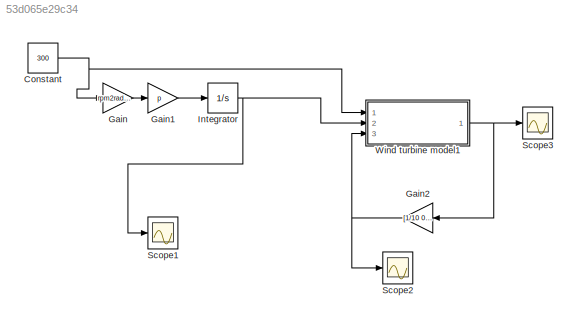
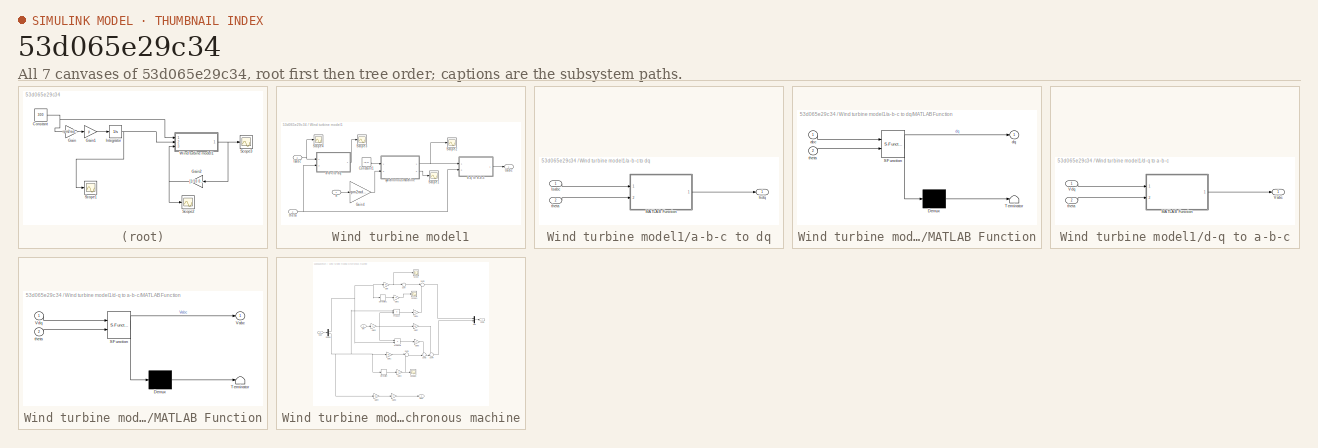
[diagram: thumbnail index - all 7 canvases of the model, root first then tree order]
MODEL slx_53d065e29c34
KIND model
CONFIG AbsTol = auto
CONFIG FixedStep = Ts
CONFIG MaxStep = auto
CONFIG MinStep = auto
CONFIG RelTol = 1e-3
CONFIG SampleTimeConstraint = Unconstrained
CONFIG Solver = ode3
CONFIG SolverMode = Auto
CONFIG SolverName = ode3
CONFIG StartTime = 0.0
CONFIG StopTime = 3
BLOCK [Constant] Constant
  Value = 300
BLOCK [Gain] Gain
  Gain = rpm2radps
  OutDataTypeStr = Inherit: Inherit via internal rule
  ParamDataTypeStr = Inherit: Inherit via internal rule
  SaturateOnIntegerOverflow = off
BLOCK [Gain] Gain1
  Gain = p
  OutDataTypeStr = Inherit: Inherit via internal rule
  ParamDataTypeStr = Inherit: Inherit via internal rule
  SaturateOnIntegerOverflow = off
BLOCK [Gain] Gain2
  Gain = [1/10 0 0 ; 0 1/10 0 ; 0 0 1/10]
  Multiplication = Matrix(K*u)
  OutDataTypeStr = Inherit: Inherit via internal rule
  ParamDataTypeStr = Inherit: Inherit via internal rule
  SaturateOnIntegerOverflow = off
BLOCK [Integrator] Integrator
  Ports = [1, 1]
BLOCK [Scope] Scope1
  Floating = off
  LimitDataPoints = off
  NumInputPorts = 1
  Ports = [1]
  SaveName = ScopeData3
  YMax = 400
  YMin = -400
  ZoomMode = xonly
BLOCK [Scope] Scope2
  Floating = off
  LimitDataPoints = off
  NumInputPorts = 1
  Ports = [1]
  SaveName = ScopeData5
  YMax = 1.75
  YMin = -1.75
  ZoomMode = xonly
BLOCK [Scope] Scope3
  Floating = off
  LimitDataPoints = off
  NumInputPorts = 1
  Ports = [1]
  YMax = 17.5
  YMin = -17.5
  ZoomMode = xonly
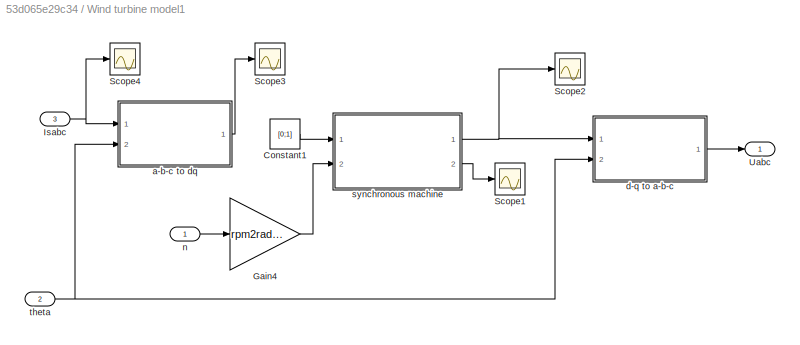
BLOCK [SubSystem] Wind turbine model1
  Ports = [3, 1]
  RequestExecContextInheritance = off
BLOCK [Constant] Wind turbine model1/Constant1
  Value = [0;1]
BLOCK [Gain] Wind turbine model1/Gain4
  Gain = rpm2radps
  OutDataTypeStr = Inherit: Inherit via internal rule
  ParamDataTypeStr = Inherit: Inherit via internal rule
  SaturateOnIntegerOverflow = off
BLOCK [Inport] Wind turbine model1/Isabc
  IconDisplay = Port number
  Port = 3
BLOCK [Scope] Wind turbine model1/Scope1
  Floating = off
  NumInputPorts = 1
  Ports = [1]
  SaveName = ScopeData1
BLOCK [Scope] Wind turbine model1/Scope2
  Floating = off
  NumInputPorts = 1
  Ports = [1]
  SaveName = ScopeData4
  YMax = 20
  YMin = -1
BLOCK [Scope] Wind turbine model1/Scope3
  Floating = off
  NumInputPorts = 1
  Ports = [1]
  SaveName = ScopeData2
  YMax = 2.2
  YMin = -0.1
BLOCK [Scope] Wind turbine model1/Scope4
  Floating = off
  LimitDataPoints = off
  NumInputPorts = 1
  Ports = [1]
  SaveName = ScopeData6
  YMax = 1.3
  YMin = -0.7
  ZoomMode = xonly
BLOCK [Outport] Wind turbine model1/Uabc
  IconDisplay = Port number
BLOCK [SubSystem] Wind turbine model1/a-b-c to dq
  Ports = [2, 1]
  RequestExecContextInheritance = off
BLOCK [Inport] Wind turbine model1/a-b-c to dq/Isabc
  IconDisplay = Port number
BLOCK [Outport] Wind turbine model1/a-b-c to dq/Isdq
  IconDisplay = Port number
BLOCK [SubSystem] Wind turbine model1/a-b-c to dq/MATLAB Function
  ErrorFcn = Stateflow.Translate.translate
  PermitHierarchicalResolution = ExplicitOnly
  Ports = [2, 1]
  RequestExecContextInheritance = off
  SFBlockType = MATLAB Function
  TreatAsAtomicUnit = on
BLOCK [Demux] Wind turbine model1/a-b-c to dq/MATLAB Function/ Demux 
  Outputs = 1
  Ports = [1, 1]
BLOCK [S-Function] Wind turbine model1/a-b-c to dq/MATLAB Function/ SFunction 
  EnableBusSupport = on
  FunctionName = sf_sfun
  PortCounts = [2 2]
  Ports = [2, 2]
  Tag = Stateflow S-Function WT_modelv2 3
BLOCK [Terminator] Wind turbine model1/a-b-c to dq/MATLAB Function/ Terminator 
BLOCK [Inport] Wind turbine model1/a-b-c to dq/MATLAB Function/abc
  IconDisplay = Port number
BLOCK [Outport] Wind turbine model1/a-b-c to dq/MATLAB Function/dq
  IconDisplay = Port number
BLOCK [Inport] Wind turbine model1/a-b-c to dq/MATLAB Function/theta
  IconDisplay = Port number
  Port = 2
BLOCK [Inport] Wind turbine model1/a-b-c to dq/theta
  IconDisplay = Port number
  Port = 2
BLOCK [SubSystem] Wind turbine model1/d-q to a-b-c
  Ports = [2, 1]
  RequestExecContextInheritance = off
BLOCK [SubSystem] Wind turbine model1/d-q to a-b-c/MATLAB Function
  ErrorFcn = Stateflow.Translate.translate
  PermitHierarchicalResolution = ExplicitOnly
  Ports = [2, 1]
  RequestExecContextInheritance = off
  SFBlockType = MATLAB Function
  TreatAsAtomicUnit = on
BLOCK [Demux] Wind turbine model1/d-q to a-b-c/MATLAB Function/ Demux 
  Outputs = 1
  Ports = [1, 1]
BLOCK [S-Function] Wind turbine model1/d-q to a-b-c/MATLAB Function/ SFunction 
  EnableBusSupport = on
  FunctionName = sf_sfun
  PortCounts = [2 2]
  Ports = [2, 2]
  Tag = Stateflow S-Function WT_modelv2 4
BLOCK [Terminator] Wind turbine model1/d-q to a-b-c/MATLAB Function/ Terminator 
BLOCK [Outport] Wind turbine model1/d-q to a-b-c/MATLAB Function/Vabc
  IconDisplay = Port number
BLOCK [Inport] Wind turbine model1/d-q to a-b-c/MATLAB Function/Vdq
  IconDisplay = Port number
BLOCK [Inport] Wind turbine model1/d-q to a-b-c/MATLAB Function/theta
  IconDisplay = Port number
  Port = 2
BLOCK [Outport] Wind turbine model1/d-q to a-b-c/Vabc
  IconDisplay = Port number
BLOCK [Inport] Wind turbine model1/d-q to a-b-c/Vdq
  IconDisplay = Port number
BLOCK [Inport] Wind turbine model1/d-q to a-b-c/theta
  IconDisplay = Port number
  Port = 2
BLOCK [Inport] Wind turbine model1/n
  IconDisplay = Port number
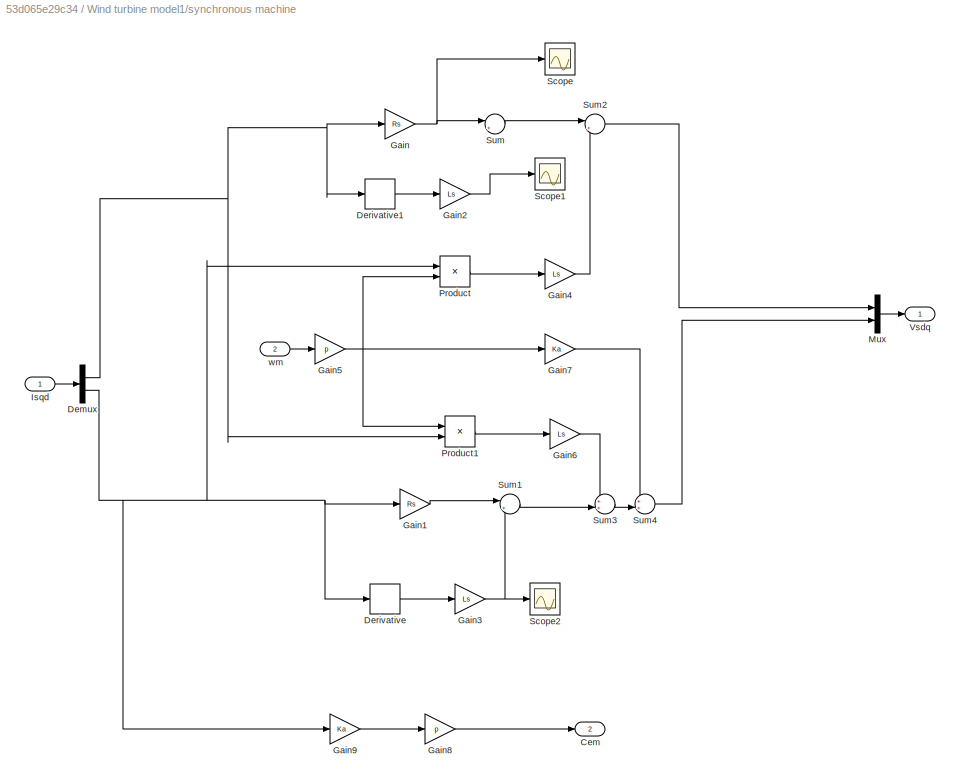
BLOCK [SubSystem] Wind turbine model1/synchronous machine
  Ports = [2, 2]
  RequestExecContextInheritance = off
BLOCK [Outport] Wind turbine model1/synchronous machine/Cem
  IconDisplay = Port number
  Port = 2
BLOCK [Demux] Wind turbine model1/synchronous machine/Demux
  DisplayOption = bar
  Outputs = 2
  Ports = [1, 2]
BLOCK [Derivative] Wind turbine model1/synchronous machine/Derivative
BLOCK [Derivative] Wind turbine model1/synchronous machine/Derivative1
BLOCK [Gain] Wind turbine model1/synchronous machine/Gain
  Gain = Rs
  OutDataTypeStr = Inherit: Inherit via internal rule
  ParamDataTypeStr = Inherit: Inherit via internal rule
  SaturateOnIntegerOverflow = off
BLOCK [Gain] Wind turbine model1/synchronous machine/Gain1
  Gain = Rs
  OutDataTypeStr = Inherit: Inherit via internal rule
  ParamDataTypeStr = Inherit: Inherit via internal rule
  SaturateOnIntegerOverflow = off
BLOCK [Gain] Wind turbine model1/synchronous machine/Gain2
  Gain = Ls
  OutDataTypeStr = Inherit: Inherit via internal rule
  ParamDataTypeStr = Inherit: Inherit via internal rule
  SaturateOnIntegerOverflow = off
BLOCK [Gain] Wind turbine model1/synchronous machine/Gain3
  Gain = Ls
  OutDataTypeStr = Inherit: Inherit via internal rule
  ParamDataTypeStr = Inherit: Inherit via internal rule
  SaturateOnIntegerOverflow = off
BLOCK [Gain] Wind turbine model1/synchronous machine/Gain4
  Gain = Ls
  OutDataTypeStr = Inherit: Inherit via internal rule
  ParamDataTypeStr = Inherit: Inherit via internal rule
  SaturateOnIntegerOverflow = off
BLOCK [Gain] Wind turbine model1/synchronous machine/Gain5
  Gain = p
  OutDataTypeStr = Inherit: Inherit via internal rule
  ParamDataTypeStr = Inherit: Inherit via internal rule
  SaturateOnIntegerOverflow = off
BLOCK [Gain] Wind turbine model1/synchronous machine/Gain6
  Gain = Ls
  OutDataTypeStr = Inherit: Inherit via internal rule
  ParamDataTypeStr = Inherit: Inherit via internal rule
  SaturateOnIntegerOverflow = off
BLOCK [Gain] Wind turbine model1/synchronous machine/Gain7
  Gain = Ka
  OutDataTypeStr = Inherit: Inherit via internal rule
  ParamDataTypeStr = Inherit: Inherit via internal rule
  SaturateOnIntegerOverflow = off
BLOCK [Gain] Wind turbine model1/synchronous machine/Gain8
  Gain = p
  OutDataTypeStr = Inherit: Inherit via internal rule
  ParamDataTypeStr = Inherit: Inherit via internal rule
  SaturateOnIntegerOverflow = off
BLOCK [Gain] Wind turbine model1/synchronous machine/Gain9
  Gain = Ka
  OutDataTypeStr = Inherit: Inherit via internal rule
  ParamDataTypeStr = Inherit: Inherit via internal rule
  SaturateOnIntegerOverflow = off
BLOCK [Inport] Wind turbine model1/synchronous machine/Isqd
  IconDisplay = Port number
BLOCK [Mux] Wind turbine model1/synchronous machine/Mux
  DisplayOption = bar
  Inputs = 2
  Ports = [2, 1]
BLOCK [Product] Wind turbine model1/synchronous machine/Product
  InputSameDT = off
  OutDataTypeStr = Inherit: Inherit via internal rule
  Ports = [2, 1]
  RndMeth = Floor
  SaturateOnIntegerOverflow = off
BLOCK [Product] Wind turbine model1/synchronous machine/Product1
  InputSameDT = off
  OutDataTypeStr = Inherit: Inherit via internal rule
  Ports = [2, 1]
  RndMeth = Floor
  SaturateOnIntegerOverflow = off
BLOCK [Scope] Wind turbine model1/synchronous machine/Scope
  Floating = off
  LimitDataPoints = off
  NumInputPorts = 1
  Ports = [1]
  SaveName = ScopeData7
BLOCK [Scope] Wind turbine model1/synchronous machine/Scope1
  Floating = off
  LimitDataPoints = off
  NumInputPorts = 1
  Ports = [1]
  SaveName = ScopeData8
BLOCK [Scope] Wind turbine model1/synchronous machine/Scope2
  Floating = off
  LimitDataPoints = off
  NumInputPorts = 1
  Ports = [1]
  SaveName = ScopeData9
BLOCK [Sum] Wind turbine model1/synchronous machine/Sum
  IconShape = round
  InputSameDT = off
  Inputs = |++
  OutDataTypeStr = Inherit: Inherit via internal rule
  Ports = [2, 1]
  SaturateOnIntegerOverflow = off
BLOCK [Sum] Wind turbine model1/synchronous machine/Sum1
  IconShape = round
  InputSameDT = off
  Inputs = |++
  OutDataTypeStr = Inherit: Inherit via internal rule
  Ports = [2, 1]
  SaturateOnIntegerOverflow = off
BLOCK [Sum] Wind turbine model1/synchronous machine/Sum2
  IconShape = round
  InputSameDT = off
  Inputs = |+-
  OutDataTypeStr = Inherit: Inherit via internal rule
  Ports = [2, 1]
  SaturateOnIntegerOverflow = off
BLOCK [Sum] Wind turbine model1/synchronous machine/Sum3
  IconShape = round
  InputSameDT = off
  Inputs = ++|
  OutDataTypeStr = Inherit: Inherit via internal rule
  Ports = [2, 1]
  SaturateOnIntegerOverflow = off
BLOCK [Sum] Wind turbine model1/synchronous machine/Sum4
  IconShape = round
  InputSameDT = off
  Inputs = ++|
  OutDataTypeStr = Inherit: Inherit via internal rule
  Ports = [2, 1]
  SaturateOnIntegerOverflow = off
BLOCK [Outport] Wind turbine model1/synchronous machine/Vsdq
  IconDisplay = Port number
BLOCK [Inport] Wind turbine model1/synchronous machine/wm
  IconDisplay = Port number
  Port = 2
BLOCK [Inport] Wind turbine model1/theta
  IconDisplay = Port number
  Port = 2
NET Constant:1 -> Gain:1, Wind turbine model1:1
LINE Gain1:1 -> Integrator:1
NET Gain2:1 -> Scope2:1, Wind turbine model1:3
LINE Gain:1 -> Gain1:1
NET Integrator:1 -> Scope1:1, Wind turbine model1:2
LINE Wind turbine model1/Constant1:1 -> Wind turbine model1/synchronous machine:1
LINE Wind turbine model1/Gain4:1 -> Wind turbine model1/synchronous machine:2
NET Wind turbine model1/Isabc:1 -> Wind turbine model1/Scope4:1, Wind turbine model1/a-b-c to dq:1
LINE Wind turbine model1/a-b-c to dq/Isabc:1 -> Wind turbine model1/a-b-c to dq/MATLAB Function:1
LINE Wind turbine model1/a-b-c to dq/MATLAB Function:1 -> Wind turbine model1/a-b-c to dq/Isdq:1
LINE Wind turbine model1/a-b-c to dq/theta:1 -> Wind turbine model1/a-b-c to dq/MATLAB Function:2
LINE Wind turbine model1/a-b-c to dq:1 -> Wind turbine model1/Scope3:1
LINE Wind turbine model1/d-q to a-b-c/MATLAB Function:1 -> Wind turbine model1/d-q to a-b-c/Vabc:1
LINE Wind turbine model1/d-q to a-b-c/Vdq:1 -> Wind turbine model1/d-q to a-b-c/MATLAB Function:1
LINE Wind turbine model1/d-q to a-b-c/theta:1 -> Wind turbine model1/d-q to a-b-c/MATLAB Function:2
LINE Wind turbine model1/d-q to a-b-c:1 -> Wind turbine model1/Uabc:1
LINE Wind turbine model1/n:1 -> Wind turbine model1/Gain4:1
NET Wind turbine model1/synchronous machine/Demux:1 -> Wind turbine model1/synchronous machine/Derivative1:1, Wind turbine model1/synchronous machine/Gain:1, Wind turbine model1/synchronous machine/Product1:2
NET Wind turbine model1/synchronous machine/Demux:2 -> Wind turbine model1/synchronous machine/Derivative:1, Wind turbine model1/synchronous machine/Gain1:1, Wind turbine model1/synchronous machine/Gain9:1, Wind turbine model1/synchronous machine/Product:1
LINE Wind turbine model1/synchronous machine/Derivative1:1 -> Wind turbine model1/synchronous machine/Gain2:1
LINE Wind turbine model1/synchronous machine/Derivative:1 -> Wind turbine model1/synchronous machine/Gain3:1
LINE Wind turbine model1/synchronous machine/Gain1:1 -> Wind turbine model1/synchronous machine/Sum1:1
LINE Wind turbine model1/synchronous machine/Gain2:1 -> Wind turbine model1/synchronous machine/Scope1:1
NET Wind turbine model1/synchronous machine/Gain3:1 -> Wind turbine model1/synchronous machine/Scope2:1, Wind turbine model1/synchronous machine/Sum1:2
LINE Wind turbine model1/synchronous machine/Gain4:1 -> Wind turbine model1/synchronous machine/Sum2:2
NET Wind turbine model1/synchronous machine/Gain5:1 -> Wind turbine model1/synchronous machine/Gain7:1, Wind turbine model1/synchronous machine/Product1:1, Wind turbine model1/synchronous machine/Product:2
LINE Wind turbine model1/synchronous machine/Gain6:1 -> Wind turbine model1/synchronous machine/Sum3:1
LINE Wind turbine model1/synchronous machine/Gain7:1 -> Wind turbine model1/synchronous machine/Sum4:1
LINE Wind turbine model1/synchronous machine/Gain8:1 -> Wind turbine model1/synchronous machine/Cem:1
LINE Wind turbine model1/synchronous machine/Gain9:1 -> Wind turbine model1/synchronous machine/Gain8:1
NET Wind turbine model1/synchronous machine/Gain:1 -> Wind turbine model1/synchronous machine/Scope:1, Wind turbine model1/synchronous machine/Sum:1
LINE Wind turbine model1/synchronous machine/Isqd:1 -> Wind turbine model1/synchronous machine/Demux:1
LINE Wind turbine model1/synchronous machine/Mux:1 -> Wind turbine model1/synchronous machine/Vsdq:1
LINE Wind turbine model1/synchronous machine/Product1:1 -> Wind turbine model1/synchronous machine/Gain6:1
LINE Wind turbine model1/synchronous machine/Product:1 -> Wind turbine model1/synchronous machine/Gain4:1
LINE Wind turbine model1/synchronous machine/Sum1:1 -> Wind turbine model1/synchronous machine/Sum3:2
LINE Wind turbine model1/synchronous machine/Sum2:1 -> Wind turbine model1/synchronous machine/Mux:1
LINE Wind turbine model1/synchronous machine/Sum3:1 -> Wind turbine model1/synchronous machine/Sum4:2
LINE Wind turbine model1/synchronous machine/Sum4:1 -> Wind turbine model1/synchronous machine/Mux:2
LINE Wind turbine model1/synchronous machine/Sum:1 -> Wind turbine model1/synchronous machine/Sum2:1
LINE Wind turbine model1/synchronous machine/wm:1 -> Wind turbine model1/synchronous machine/Gain5:1
NET Wind turbine model1/synchronous machine:1 -> Wind turbine model1/Scope2:1, Wind turbine model1/d-q to a-b-c:1
LINE Wind turbine model1/synchronous machine:2 -> Wind turbine model1/Scope1:1
NET Wind turbine model1/theta:1 -> Wind turbine model1/a-b-c to dq:2, Wind turbine model1/d-q to a-b-c:2
NET Wind turbine model1:1 -> Gain2:1, Scope3:1
note: NET lines group one-source signal fan-out (src -> all destinations, sorted); 1:1 wires keep LINE
CHART Wind turbine model1/a-b-c to dq/MATLAB Function states=1 transitions=1
  STATE_LABEL 'eML_blk_kernel()'
  STATE_LABEL 'SCRIPT:\nfunction dq = abc2dq(abc,theta)\n% transformation from d-q to a-b-c\n% based on "COMMANDE VECTORIELLE DES MACHINES ASYNCHRONES & SYNCHRONES" \n% 5ème Année GE Option ISIP INSA LYON\n% http://docinsa.insa-lyon.fr/polycop/download.php?id=160503&id2=0 \n\n\n\ndq=zeros(2,1) ; \na= abc(1) ; \nb= abc(2) ; \nc=abc(3) ; \n\nd = cos(theta)*a + cos(theta-2*pi/3)*b + cos(theta+2*pi/3)*c ; \nq = -sin(theta)*a -sin(...<+89ch>'
CHART Wind turbine model1/d-q to a-b-c/MATLAB Function states=1 transitions=1
  STATE_LABEL 'eML_blk_kernel()'
  STATE_LABEL 'SCRIPT:\nfunction Vabc = fcn(Vdq,theta)\n% transformation from d-q to a-b-c\n% based on "COMMANDE VECTORIELLE DES MACHINES ASYNCHRONES & SYNCHRONES" \n% 5ème Année GE Option ISIP INSA LYON\n% http://docinsa.insa-lyon.fr/polycop/download.php?id=160503&id2=0 \n\n\n\nVabc=zeros(3,1) ; \n\nVa = cos (theta)*Vdq(1) -sin(theta)*Vdq(2) ; \nVb = cos(theta-2*pi/3)*Vdq(1) - sin(theta -2*pi/3)*Vdq(2) ; \nVc = cos(theta+2*...<+114ch>'
